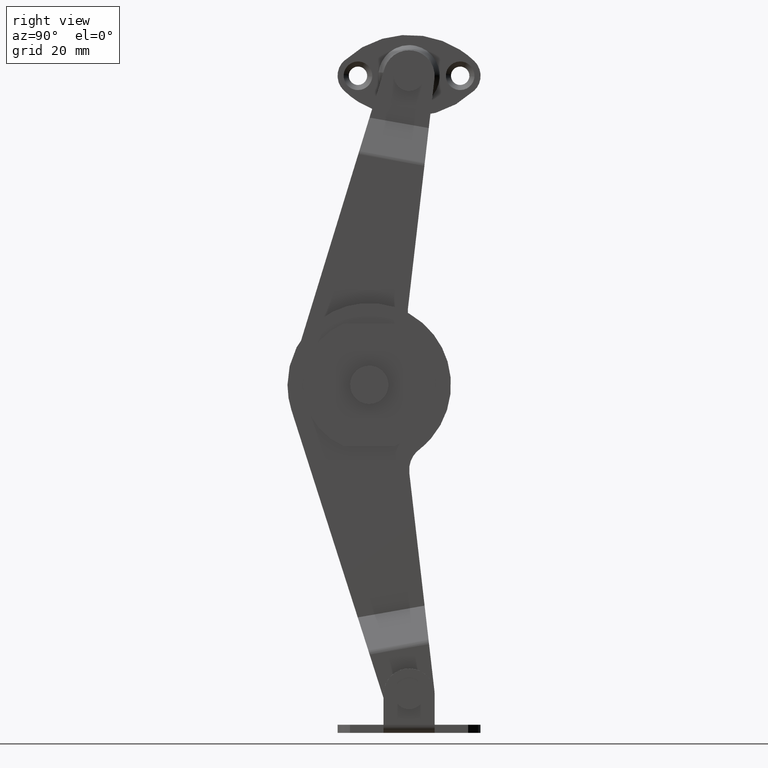
[diagram: clean part render]
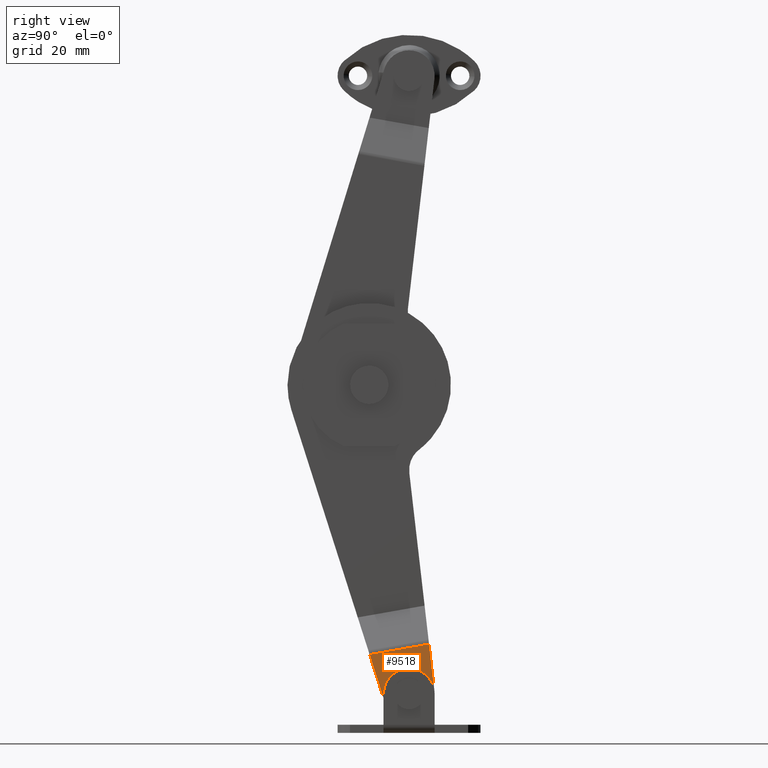
[diagram: same view with one face highlighted and labeled with its STEP entity id]
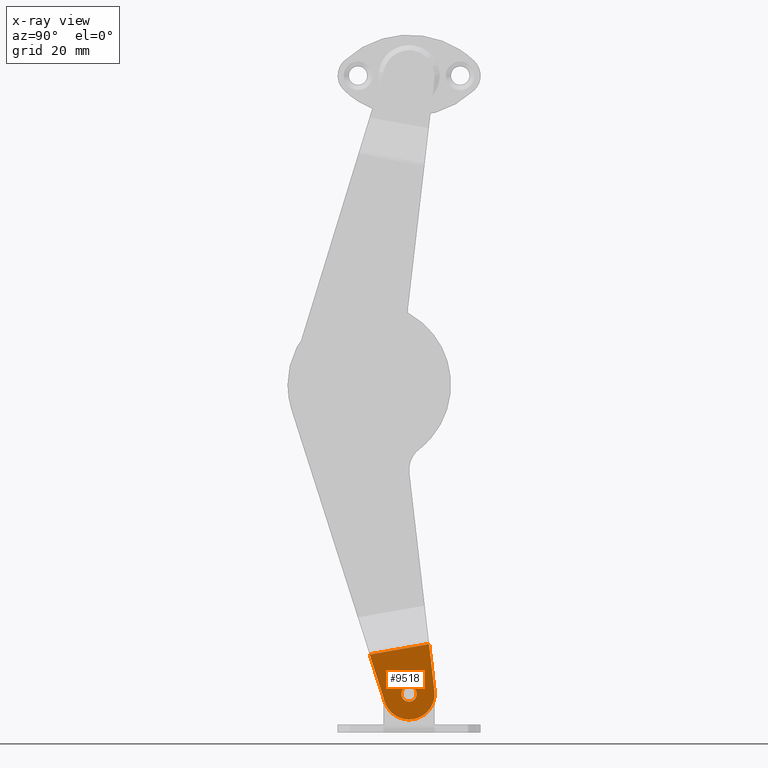
[diagram: x-ray of the same camera — body ghosted, the highlighted face saturated]
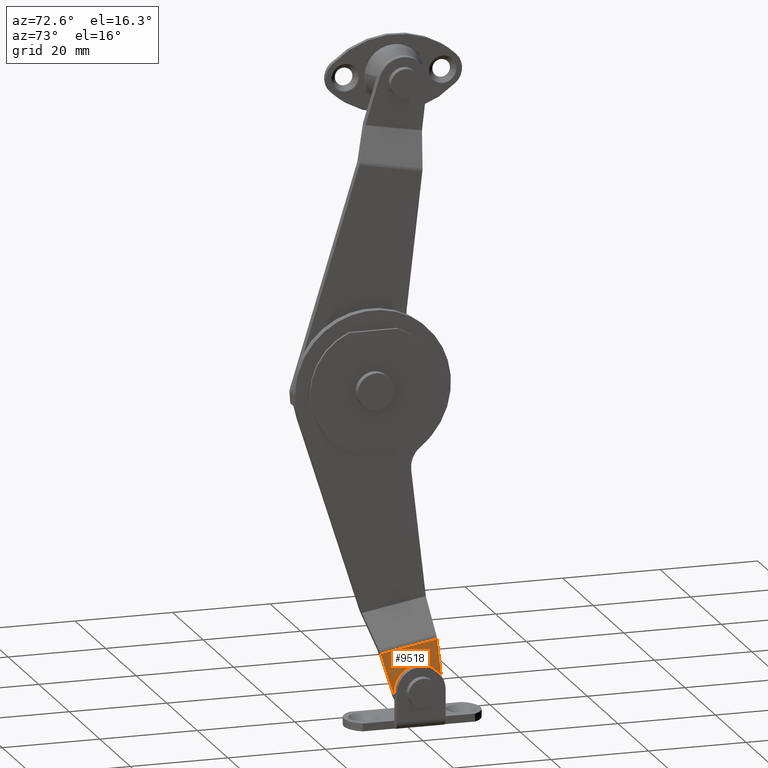
[diagram: same view with one face highlighted and labeled with its STEP entity id]
A machine part, right view. The second image highlights one B-rep face of the part: STEP entity #9518.
The next image is the same camera in x-ray: the body ghosted, the highlighted face saturated — about 0% of this face is hidden behind the body in this view.
A second angle (auxiliary view) of the same face is appended — the face is thin or edge-on in the first view.
In plain terms, the highlighted face is a freeform B-spline surface patch.
Its self-contained STEP definition (entity closure, byte-faithful):
#8647=CARTESIAN_POINT('',(16.800004999999999,-0.005770999999868,-59.0));
#8648=VERTEX_POINT('',#8647);
#8649=CARTESIAN_POINT('',(16.800004999999999,1.489605000530585,-60.382311355528458));
#8650=VERTEX_POINT('',#8649);
#8651=CARTESIAN_POINT('',(16.800004999999999,-0.005770999999868,-59.0));
#8652=CARTESIAN_POINT('',(16.800005000000006,1.380814735850862,-58.999999999999993));
#8653=CARTESIAN_POINT('',(16.800004999999999,1.489605000530585,-60.382311355528458));
#8661=(BOUNDED_CURVE()B_SPLINE_CURVE(2,(#8651,#8652,#8653),.UNSPECIFIED.,.F.,.U.)B_SPLINE_CURVE_WITH_KNOTS((3,3),(0.0,0.236331300431059),.UNSPECIFIED.)CURVE()GEOMETRIC_REPRESENTATION_ITEM()RATIONAL_B_SPLINE_CURVE((1.0,0.723120658841512,0.969723355750867))REPRESENTATION_ITEM(''));
#8662=EDGE_CURVE('',#8648,#8650,#8661,.T.);
#8664=CARTESIAN_POINT('',(16.800004999999999,-1.501147000530320,-60.617688644471542));
#8665=VERTEX_POINT('',#8664);
#8666=CARTESIAN_POINT('',(16.800005000000002,-1.501147000530321,-60.617688644471542));
#8667=CARTESIAN_POINT('',(16.800005000000002,-1.505770999999868,-60.558935161395361));
#8668=CARTESIAN_POINT('',(16.800004999999999,-1.505770999999868,-60.500000000000000));
#8669=CARTESIAN_POINT('',(16.800005000000006,-1.505770999999869,-58.999999999999993));
#8670=CARTESIAN_POINT('',(16.800004999999999,-0.005770999999868,-59.0));
#8678=(BOUNDED_CURVE()B_SPLINE_CURVE(2,(#8666,#8667,#8668,#8669,#8670),.UNSPECIFIED.,.F.,.U.)B_SPLINE_CURVE_WITH_KNOTS((3,2,3),(0.736331300431060,0.750000000000000,1.0),.UNSPECIFIED.)CURVE()GEOMETRIC_REPRESENTATION_ITEM()RATIONAL_B_SPLINE_CURVE((0.969723355750868,0.983986122345036,1.0,0.707106781186548,1.0))REPRESENTATION_ITEM(''));
#8679=EDGE_CURVE('',#8665,#8648,#8678,.T.);
#8746=CARTESIAN_POINT('',(16.800004999999999,-0.005770999999868,-62.0));
#8747=VERTEX_POINT('',#8746);
#8748=CARTESIAN_POINT('',(16.800004999999999,1.489605000530584,-60.382311355528458));
#8749=CARTESIAN_POINT('',(16.800005000000002,1.494229000000132,-60.441064838604646));
#8750=CARTESIAN_POINT('',(16.800004999999999,1.494229000000132,-60.500000000000000));
#8751=CARTESIAN_POINT('',(16.800005000000006,1.494229000000132,-62.000000000000007));
#8752=CARTESIAN_POINT('',(16.800004999999999,-0.005770999999868,-62.0));
#8760=(BOUNDED_CURVE()B_SPLINE_CURVE(2,(#8748,#8749,#8750,#8751,#8752),.UNSPECIFIED.,.F.,.U.)B_SPLINE_CURVE_WITH_KNOTS((3,2,3),(0.236331300431059,0.250000000000000,0.500000000000000),.UNSPECIFIED.)CURVE()GEOMETRIC_REPRESENTATION_ITEM()RATIONAL_B_SPLINE_CURVE((0.969723355750867,0.983986122345035,1.0,0.707106781186548,1.0))REPRESENTATION_ITEM(''));
#8761=EDGE_CURVE('',#8650,#8747,#8760,.T.);
#8795=CARTESIAN_POINT('',(16.800004999999999,-0.005770999999868,-62.0));
#8796=CARTESIAN_POINT('',(16.800005000000002,-1.392356735850593,-62.000000000000007));
#8797=CARTESIAN_POINT('',(16.800004999999999,-1.501147000530320,-60.617688644471542));
#8805=(BOUNDED_CURVE()B_SPLINE_CURVE(2,(#8795,#8796,#8797),.UNSPECIFIED.,.F.,.U.)B_SPLINE_CURVE_WITH_KNOTS((3,3),(0.500000000000000,0.736331300431059),.UNSPECIFIED.)CURVE()GEOMETRIC_REPRESENTATION_ITEM()RATIONAL_B_SPLINE_CURVE((1.0,0.723120658841513,0.969723355750866))REPRESENTATION_ITEM(''));
#8806=EDGE_CURVE('',#8747,#8665,#8805,.T.);
#9007=CARTESIAN_POINT('',(16.800004999999999,3.909072114264010,-50.739391024528402));
#9008=VERTEX_POINT('',#9007);
#9031=CARTESIAN_POINT('',(16.800004999999999,-7.715482272923960,-52.789110901622998));
#9032=VERTEX_POINT('',#9031);
#9046=CARTESIAN_POINT('',(16.800004999999999,-7.715482272923960,-52.789110901622998));
#9047=CARTESIAN_POINT('',(16.800004999999999,3.909072114264010,-50.739391024528402));
#9048=QUASI_UNIFORM_CURVE('',1,(#9046,#9047),.UNSPECIFIED.,.F.,.U.);
#9049=EDGE_CURVE('',#9032,#9008,#9048,.T.);
#9475=CARTESIAN_POINT('',(16.800004999999999,5.634412913938575,-66.236371137826424));
#9476=CARTESIAN_POINT('',(16.800004999999999,-8.350586418798899,-66.236371137826424));
#9477=CARTESIAN_POINT('',(16.800004999999999,5.634412913938575,-50.002143171672436));
#9478=CARTESIAN_POINT('',(16.800004999999999,-8.350586418798899,-50.002143171672436));
#9479=B_SPLINE_SURFACE_WITH_KNOTS('',1,1,((#9475,#9477),(#9476,#9478)),.UNSPECIFIED.,.F.,.F.,.U.,(2,2),(2,2),(0.0,13.984999332737470),(0.0,16.234227966153981),.UNSPECIFIED.);
#9480=CARTESIAN_POINT('',(16.800004999999999,-4.754116231611940,-62.048670028225601));
#9481=VERTEX_POINT('',#9480);
#9482=CARTESIAN_POINT('',(16.800004999999999,-4.754116231611940,-62.048670028225601));
#9483=CARTESIAN_POINT('',(16.800004999999999,-7.715482272923960,-52.789110901622998));
#9484=QUASI_UNIFORM_CURVE('',1,(#9482,#9483),.UNSPECIFIED.,.F.,.U.);
#9485=EDGE_CURVE('',#9481,#9032,#9484,.T.);
#9486=ORIENTED_EDGE('',*,*,#9485,.F.);
#9487=CARTESIAN_POINT('',(16.800004999999999,4.967174769920971,-59.928012013851401));
#9488=VERTEX_POINT('',#9487);
#9489=CARTESIAN_POINT('',(16.800004999999999,4.967174769920971,-59.928012013851401));
#9490=CARTESIAN_POINT('',(16.800005000000006,5.484576115828601,-64.421149455844812));
#9491=CARTESIAN_POINT('',(16.800004999999999,1.065667017404856,-65.385115536813359));
#9492=CARTESIAN_POINT('',(16.800005000000006,-3.353242081018891,-66.349081617781934));
#9493=CARTESIAN_POINT('',(16.800004999999999,-4.754116231611927,-62.048670028225601));
#9501=(BOUNDED_CURVE()B_SPLINE_CURVE(2,(#9489,#9490,#9491,#9492,#9493),.UNSPECIFIED.,.F.,.U.)B_SPLINE_CURVE_WITH_KNOTS((3,2,3),(0.0,0.500000000000000,1.0),.UNSPECIFIED.)CURVE()GEOMETRIC_REPRESENTATION_ITEM()RATIONAL_B_SPLINE_CURVE((1.0,0.741608079127299,1.0,0.741608079127299,1.0))REPRESENTATION_ITEM(''));
#9502=EDGE_CURVE('',#9488,#9481,#9501,.T.);
#9503=ORIENTED_EDGE('',*,*,#9502,.F.);
#9504=CARTESIAN_POINT('',(16.800004999999999,3.909072114264010,-50.739391024528402));
#9505=CARTESIAN_POINT('',(16.800004999999999,4.967174769920971,-59.928012013851401));
#9506=QUASI_UNIFORM_CURVE('',1,(#9504,#9505),.UNSPECIFIED.,.F.,.U.);
#9507=EDGE_CURVE('',#9008,#9488,#9506,.T.);
#9508=ORIENTED_EDGE('',*,*,#9507,.F.);
#9509=ORIENTED_EDGE('',*,*,#9049,.F.);
#9510=EDGE_LOOP('',(#9486,#9503,#9508,#9509));
#9511=FACE_OUTER_BOUND('',#9510,.T.);
#9512=ORIENTED_EDGE('',*,*,#8806,.T.);
#9513=ORIENTED_EDGE('',*,*,#8679,.T.);
#9514=ORIENTED_EDGE('',*,*,#8662,.T.);
#9515=ORIENTED_EDGE('',*,*,#8761,.T.);
#9516=EDGE_LOOP('',(#9512,#9513,#9514,#9515));
#9517=FACE_BOUND('',#9516,.T.);
#9518=ADVANCED_FACE('',(#9511,#9517),#9479,.F.);